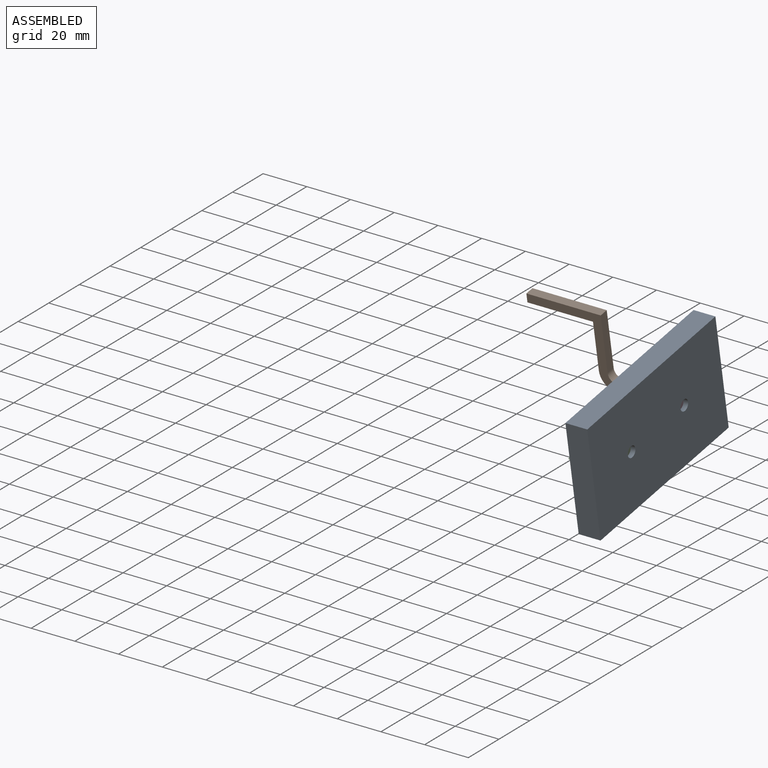
[diagram: assembled view]
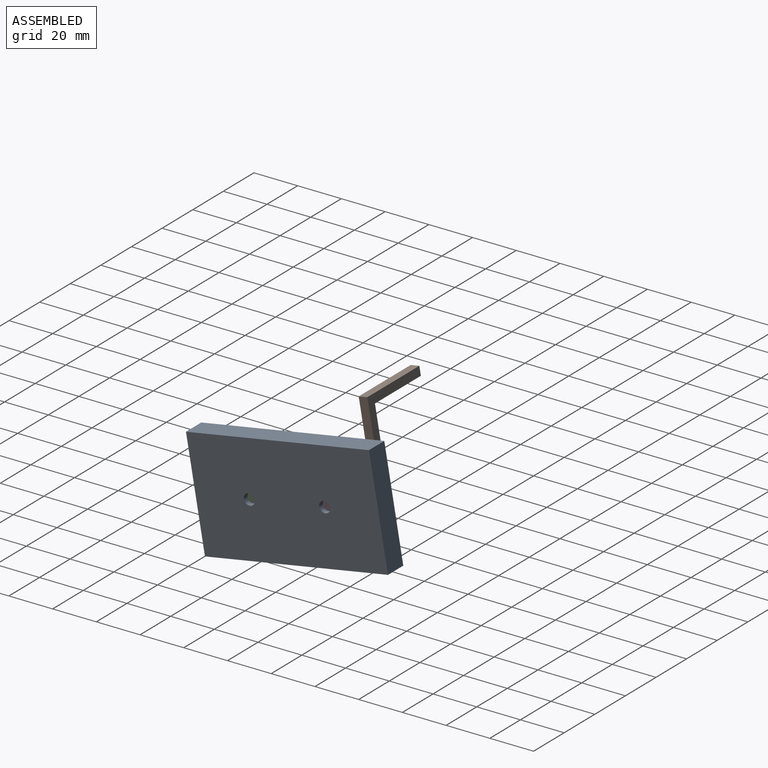
[diagram: assembled view, second angle]
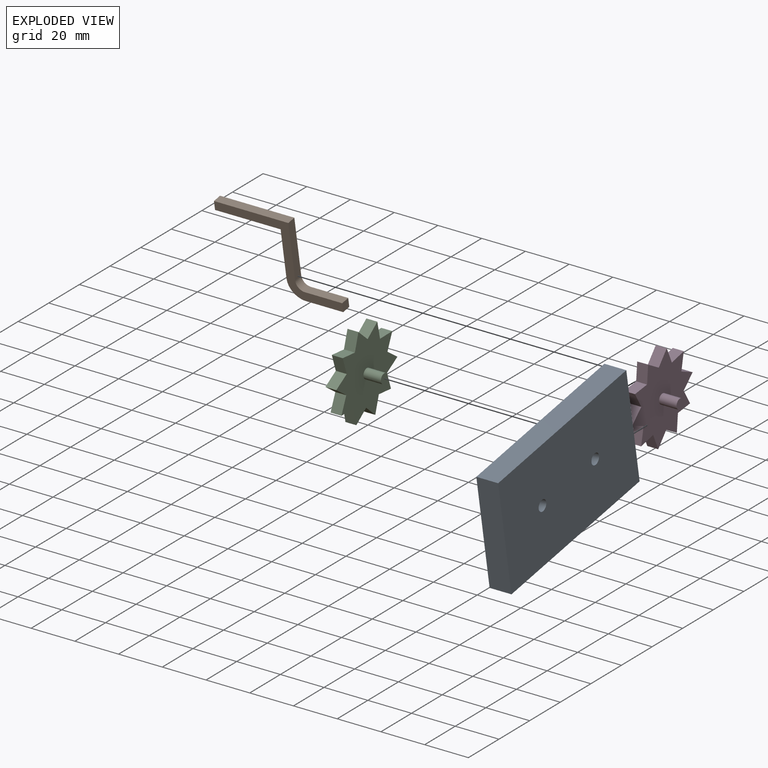
[diagram: exploded view]
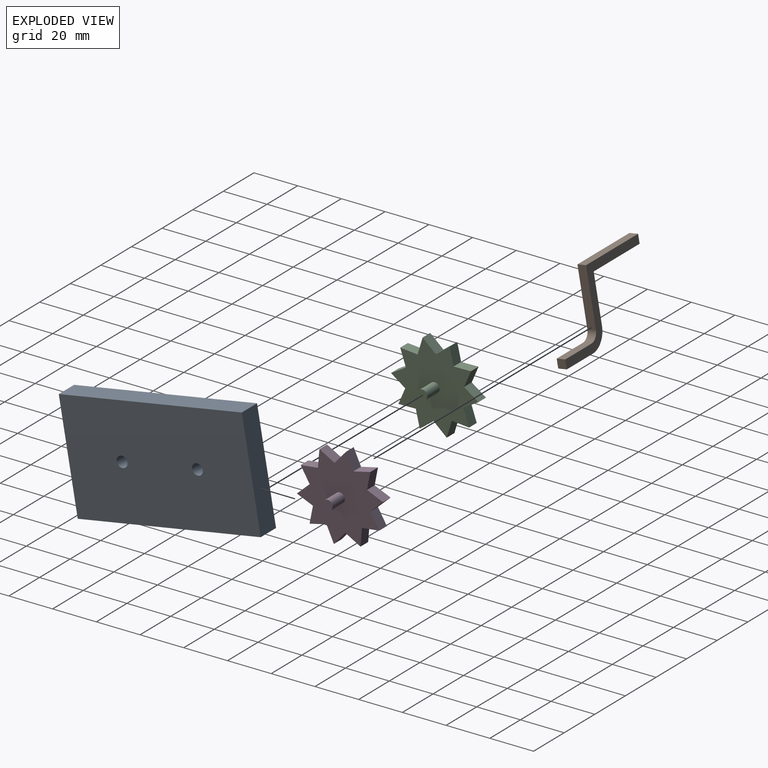
[diagram: exploded view, second angle]
ASSEMBLY  parts=4 mates=3
PART A: 8 faces, bbox 85x50x10 mm
  f0: plane 85x10mm, normal (0,1,0), area 850mm2, adj f1,f5,f6,f7
  f1: plane 50x10mm, normal (-1,0,0), area 500mm2, adj f0,f2,f6,f7
  f2: plane 85x10mm, normal (0,-1,0), area 850mm2, adj f1,f5,f6,f7
  f3: cylinder r=2.5mm len=10mm, axis (0,0,-1), area 157.1mm2, adj f6,f7
  f4: cylinder r=2.5mm len=10mm, axis (0,0,-1), area 157.1mm2, adj f6,f7
  f5: plane 50x10mm, normal (1,0,0), area 500mm2, adj f0,f2,f6,f7
  f6: plane 85x50mm, normal (0,0,1), area 4210.7mm2, adj f0,f1,f2,f3,f4,f5
  f7: plane 85x50mm, normal (0,0,-1), area 4210.7mm2, adj f0,f1,f2,f3,f4,f5
PART B: 12 faces, bbox 55x34x4 mm
  f0: plane 22x4mm, normal (-1,0,0), area 88mm2, adj f6,f7,f8,f11
  f1: plane 26x4mm, normal (1,0,0), area 104mm2, adj f2,f6,f7,f10
  f2: plane 34x4mm, normal (0,1,0), area 136mm2, adj f1,f6,f7,f9
  f3: plane 17x4mm, normal (0,-1,0), area 68mm2, adj f4,f6,f7,f11
  f4: plane 4x4mm, normal (1,0,0), area 16mm2, adj f3,f5,f6,f7
  f5: plane 17x4mm, normal (0,1,0), area 68mm2, adj f4,f6,f7,f10
  f6: plane 55x34mm, normal (0,0,1), area 329.7mm2, adj f0,f1,f2,f3,f4,f5,f8,f9
  f7: plane 55x34mm, normal (0,0,-1), area 329.7mm2, adj f0,f1,f2,f3,f4,f5,f8,f9
  f8: plane 30x4mm, normal (0,-1,0), area 120mm2, adj f0,f6,f7,f9
  f9: plane 4x4mm, normal (-1,0,0), area 16mm2, adj f2,f6,f7,f8
  f10: cylinder r=4mm len=4mm, axis (0,0,1), area 25.1mm2, adj f1,f5,f6,f7
  f11: cylinder r=8mm len=8mm, axis (0,0,1), area 50.3mm2, adj f0,f3,f6,f7
PART C: 24 faces, bbox 38x40x13 mm
  f0: plane 7.7x5mm, normal (0.26,0.97,0), area 39.8mm2, adj f1,f19,f20,f21
  f1: plane 7.95x5mm, normal (1,-0.05,0), area 39.8mm2, adj f0,f2,f20,f21
  f2: plane 7.43x5mm, normal (-0.36,0.93,0), area 39.8mm2, adj f1,f3,f20,f21
  f3: plane 6.69x5mm, normal (0.84,0.54,0), area 39.8mm2, adj f2,f4,f20,f21
  f4: plane 6.69x5mm, normal (-0.84,0.54,0), area 39.8mm2, adj f3,f5,f20,f21
  f5: plane 7.43x5mm, normal (0.36,0.93,0), area 39.8mm2, adj f4,f6,f20,f21
  f6: plane 7.95x5mm, normal (-1,-0.05,0), area 39.8mm2, adj f5,f7,f20,f21
  f7: plane 7.7x5mm, normal (-0.26,0.97,0), area 39.8mm2, adj f6,f8,f20,f21
  f8: plane 6.18x5.02mm, normal (-0.78,-0.63,0), area 39.8mm2, adj f7,f9,f20,f21
  f9: plane 6.18x5.02mm, normal (-0.78,0.63,0), area 39.8mm2, adj f8,f10,f20,f21
  f10: plane 7.7x5mm, normal (-0.26,-0.97,0), area 39.8mm2, adj f9,f11,f20,f21
  f11: plane 7.95x5mm, normal (-1,0.05,0), area 39.8mm2, adj f10,f12,f20,f21
  f12: plane 7.43x5mm, normal (0.36,-0.93,0), area 39.8mm2, adj f11,f13,f20,f21
  f13: plane 6.69x5mm, normal (-0.84,-0.54,0), area 39.8mm2, adj f12,f14,f20,f21
  f14: plane 6.69x5mm, normal (0.84,-0.54,0), area 39.8mm2, adj f13,f15,f20,f21
  f15: plane 7.43x5mm, normal (-0.36,-0.93,0), area 39.8mm2, adj f14,f16,f20,f21
  f16: plane 7.95x5mm, normal (1,0.05,0), area 39.8mm2, adj f15,f17,f20,f21
  f17: plane 7.7x5mm, normal (0.26,-0.97,0), area 39.8mm2, adj f16,f18,f20,f21
  f18: plane 6.18x5.02mm, normal (0.78,0.63,0), area 39.8mm2, adj f17,f19,f20,f21
  f19: plane 6.18x5.02mm, normal (0.78,-0.63,0), area 39.8mm2, adj f0,f18,f20,f21
  f20: plane 40x38.04mm, normal (0,0,1), area 849.3mm2, adj f0,f1,f2,f3,f4,f5,f6,f7
  f21: plane 40x38.04mm, normal (0,0,-1), area 865.2mm2, adj f0,f1,f2,f3,f4,f5,f6,f7
  f22: cylinder r=2.25mm len=8mm, axis (0,0,-1), area 113.1mm2, adj f20,f23
  f23: plane 4.5x4.5mm, normal (0,0,1), area 15.9mm2, adj f22
PART D: 29 faces, bbox 40x38x13 mm
  f0: plane 40x38.04mm, normal (0,0,-1), area 849.2mm2, adj f1,f2,f3,f4,f5,f6,f7,f8
  f1: plane 7.95x5mm, normal (-0.05,1,0), area 39.8mm2, adj f0,f2,f20,f21
  f2: plane 7.7x5mm, normal (0.97,0.26,0), area 39.8mm2, adj f0,f1,f3,f21
  f3: plane 6.18x5.02mm, normal (-0.63,0.78,0), area 39.8mm2, adj f0,f2,f4,f21
  f4: plane 6.18x5.02mm, normal (0.63,0.78,0), area 39.8mm2, adj f0,f3,f5,f21
  f5: plane 7.7x5mm, normal (-0.97,0.26,0), area 39.8mm2, adj f0,f4,f6,f21
  f6: plane 7.95x5mm, normal (0.05,1,0), area 39.8mm2, adj f0,f5,f7,f21
  f7: plane 7.43x5mm, normal (-0.93,-0.36,0), area 39.8mm2, adj f0,f6,f8,f21
  f8: plane 6.69x5mm, normal (-0.54,0.84,0), area 39.8mm2, adj f0,f7,f9,f21
  f9: plane 6.69x5mm, normal (-0.54,-0.84,0), area 39.8mm2, adj f0,f8,f10,f21
  f10: plane 7.43x5mm, normal (-0.93,0.36,0), area 39.8mm2, adj f0,f9,f11,f21
  f11: plane 7.95x5mm, normal (0.05,-1,0), area 39.8mm2, adj f0,f10,f12,f21
  f12: plane 7.7x5mm, normal (-0.97,-0.26,0), area 39.8mm2, adj f0,f11,f13,f21
  f13: plane 6.18x5.02mm, normal (0.63,-0.78,0), area 39.8mm2, adj f0,f12,f14,f21
  f14: plane 6.18x5.02mm, normal (-0.63,-0.78,0), area 39.8mm2, adj f0,f13,f15,f21
  f15: plane 7.7x5mm, normal (0.97,-0.26,0), area 39.8mm2, adj f0,f14,f16,f21
  f16: plane 7.95x5mm, normal (-0.05,-1,0), area 39.8mm2, adj f0,f15,f17,f21
  f17: plane 7.43x5mm, normal (0.93,0.36,0), area 39.8mm2, adj f0,f16,f18,f21
  f18: plane 6.69x5mm, normal (0.54,-0.84,0), area 39.8mm2, adj f0,f17,f19,f21
  f19: plane 6.69x5mm, normal (0.54,0.84,0), area 39.8mm2, adj f0,f18,f20,f21
  f20: plane 7.43x5mm, normal (0.93,-0.36,0), area 39.8mm2, adj f0,f1,f19,f21
  f21: plane 40x38.04mm, normal (0,0,1), area 849.3mm2, adj f1,f2,f3,f4,f5,f6,f7,f8
  f22: cylinder r=2.25mm len=8mm, axis (0,0,-1), area 113.1mm2, adj f21,f23
  f23: plane 4.5x4.5mm, normal (0,0,1), area 15.9mm2, adj f22
  f24: plane 4x3mm, normal (0,1,0), area 12mm2, adj f0,f25,f27,f28
  f25: plane 4x3mm, normal (1,0,0), area 12mm2, adj f0,f24,f26,f28
  f26: plane 4x3mm, normal (0,-1,0), area 12mm2, adj f0,f25,f27,f28
  f27: plane 4x3mm, normal (-1,0,0), area 12mm2, adj f0,f24,f26,f28
  f28: plane 4x4mm, normal (0,0,-1), area 16mm2, adj f24,f25,f26,f27
PLACE A rot(axis=(0.61,0.51,0.61),125.9deg) t=(42.65,-79.94,-5.44)mm
PLACE B rot(axis=(1,0,0),100deg) t=(3.13,-71.35,58.16)mm
PLACE C rot(axis=(0.5,0.71,0.5),109.2deg) t=(37.65,-90.97,-60.95)mm
PLACE D rot(axis=(-0.54,0.64,-0.54),114.4deg) t=(37.65,-47.04,48.27)mm
MATE fastened D.f22 <-> B.f4  axis (-1,0,0) through (40.65,-62.7,-2.4)mm
MATE revolute C.f22 <-> A.f3  axis (1,0,0) through (50.65,-97.17,-8.48)mm
MATE revolute D.f22 <-> A.f4  axis (1,0,0) through (50.65,-62.7,-2.4)mm
